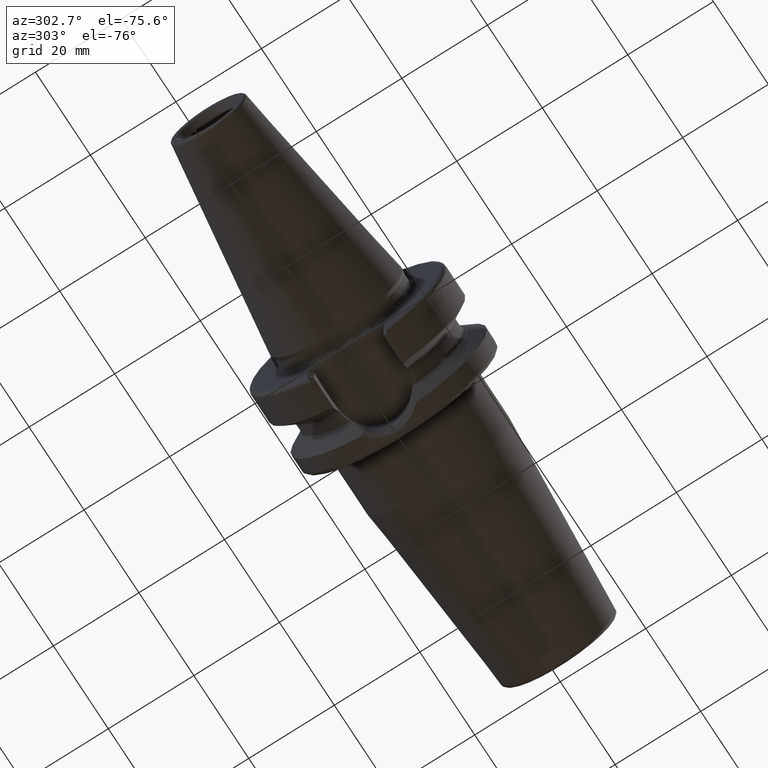
[diagram: clean part render]
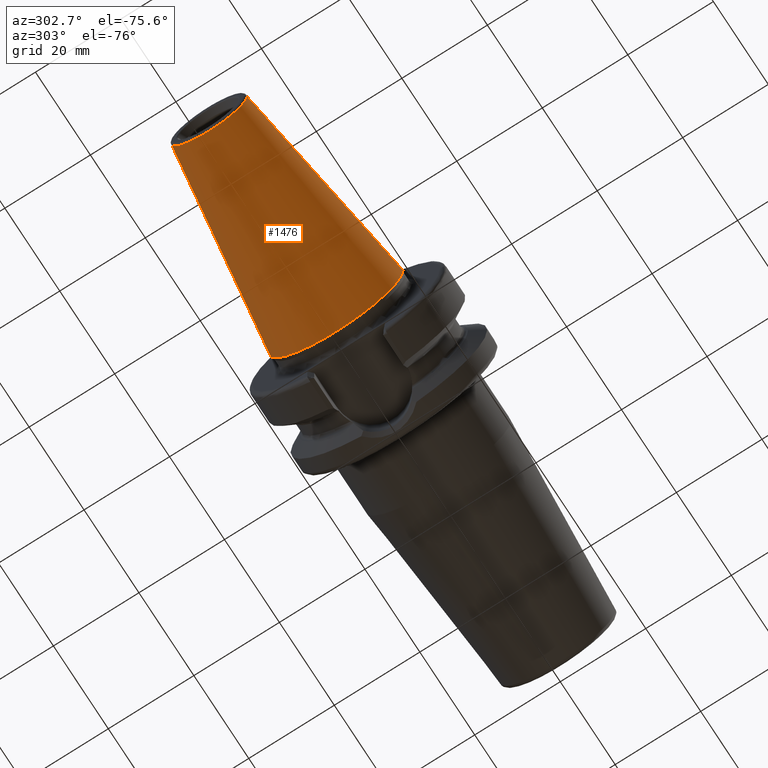
[diagram: same view with one face highlighted and labeled with its STEP entity id]
A machine part, auxiliary view. The second image highlights one B-rep face of the part: STEP entity #1476.
In plain terms, the highlighted conical surface has half-angle 8.298 deg.
Its self-contained STEP definition (entity closure, byte-faithful):
#32=CARTESIAN_POINT('',(-4.797215933459E1,0.E0,0.E0));
#33=DIRECTION('',(-1.E0,0.E0,0.E0));
#34=DIRECTION('',(0.E0,1.E0,0.E0));
#35=AXIS2_PLACEMENT_3D('',#32,#33,#34);
#47=DIRECTION('',(-9.895312636440E-1,-1.443186691705E-1,0.E0));
#48=VECTOR('',#47,4.683321324594E1);
#49=CARTESIAN_POINT('',(-1.629230650827E0,1.563738406209E1,0.E0));
#50=LINE('',#49,#48);
#51=DIRECTION('',(-9.895312636440E-1,1.443186691705E-1,0.E0));
#52=VECTOR('',#51,4.683321324594E1);
#53=CARTESIAN_POINT('',(-1.629230650827E0,-1.563738406209E1,0.E0));
#54=LINE('',#53,#52);
#55=CARTESIAN_POINT('',(-1.629230650827E0,0.E0,0.E0));
#56=DIRECTION('',(-1.E0,0.E0,0.E0));
#57=DIRECTION('',(0.E0,1.E0,0.E0));
#58=AXIS2_PLACEMENT_3D('',#55,#56,#57);
#1156=CARTESIAN_POINT('',(-4.797215933459E1,8.878477053461E0,0.E0));
#1158=VERTEX_POINT('',#1156);
#1160=CARTESIAN_POINT('',(-4.797215933459E1,-8.878477053461E0,0.E0));
#1162=VERTEX_POINT('',#1160);
#1371=CARTESIAN_POINT('',(-1.629230650827E0,1.563738406209E1,0.E0));
#1372=VERTEX_POINT('',#1371);
#1373=CARTESIAN_POINT('',(-1.629230650827E0,-1.563738406209E1,0.E0));
#1374=VERTEX_POINT('',#1373);
#1464=CARTESIAN_POINT('',(-2.480069499271E1,0.E0,0.E0));
#1465=DIRECTION('',(1.E0,0.E0,0.E0));
#1466=DIRECTION('',(0.E0,-1.E0,0.E0));
#1467=AXIS2_PLACEMENT_3D('',#1464,#1465,#1466);
#1468=CONICAL_SURFACE('',#1467,1.225793055778E1,8.297826828206E0);
#1469=ORIENTED_EDGE('',*,*,#1454,.T.);
#1470=ORIENTED_EDGE('',*,*,#1431,.T.);
#1471=ORIENTED_EDGE('',*,*,#1458,.F.);
#1473=ORIENTED_EDGE('',*,*,#1472,.F.);
#1474=EDGE_LOOP('',(#1469,#1470,#1471,#1473));
#1475=FACE_OUTER_BOUND('',#1474,.F.);
#1476=ADVANCED_FACE('',(#1475),#1468,.T.);
#36=CIRCLE('',#35,8.878477053461E0);
#59=CIRCLE('',#58,1.563738406209E1);
#1431=EDGE_CURVE('',#1158,#1162,#36,.T.);
#1454=EDGE_CURVE('',#1372,#1158,#50,.T.);
#1458=EDGE_CURVE('',#1374,#1162,#54,.T.);
#1472=EDGE_CURVE('',#1372,#1374,#59,.T.);